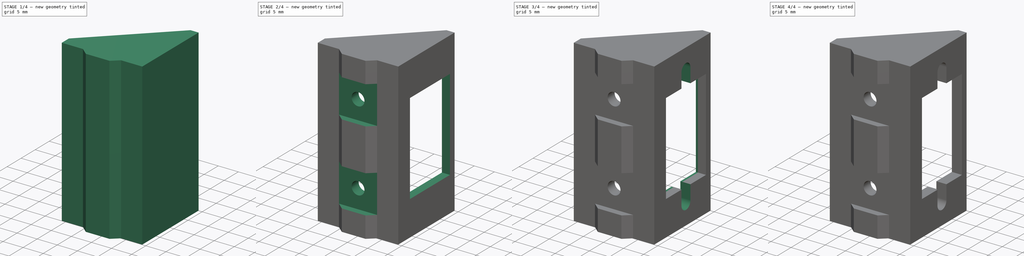
[diagram: build sequence overview — one tinted view per stage of 4, left to right]
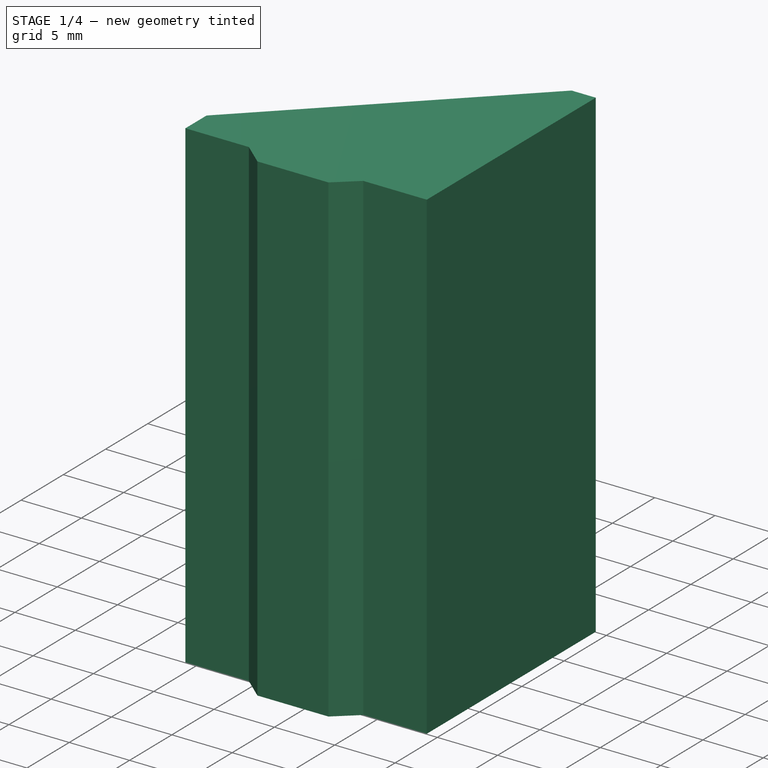
[diagram: stage 1 of 4 — iso view after this stage's code; geometry added in this stage tinted green]
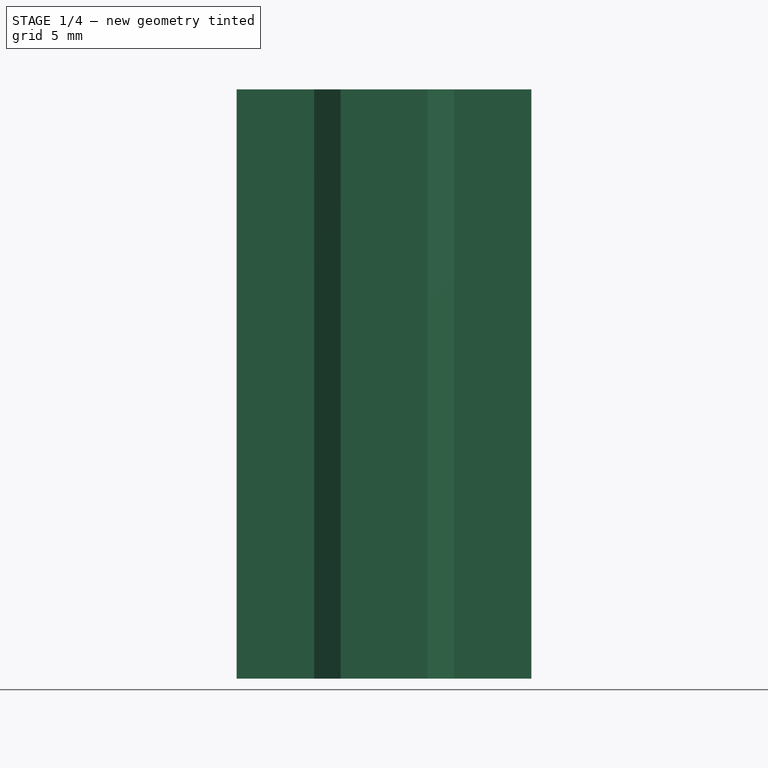
[diagram: stage 1 of 4 — front view after this stage's code; geometry added in this stage tinted green]
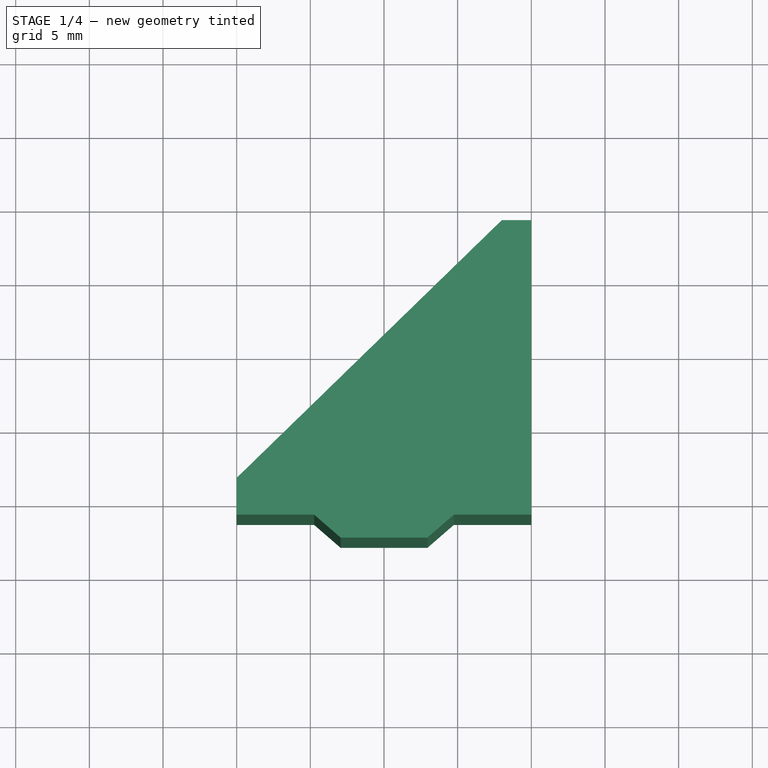
[diagram: stage 1 of 4 — top view after this stage's code; geometry added in this stage tinted green]
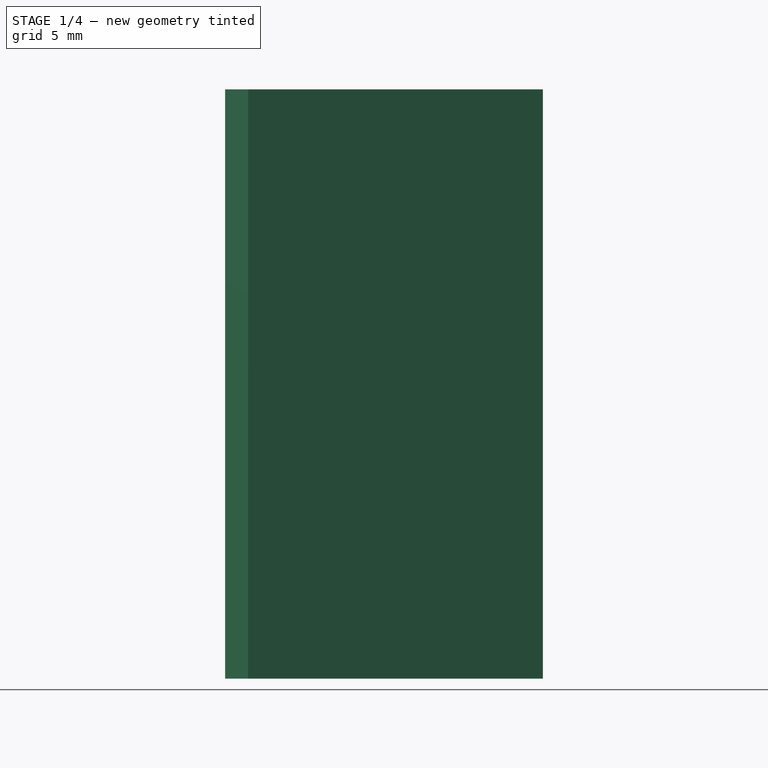
[diagram: stage 1 of 4 — right view after this stage's code; geometry added in this stage tinted green]
FCSTD DOCUMENT  (FreeCAD 0.21R33771 (Git))
Label: suporte-voltimetro-amperimetro-mine
License: All rights reserved
LicenseURL: https://en.wikipedia.org/wiki/All_rights_reserved
objects: Sketcher::SketchObject×9, PartDesign::Pocket×7, PartDesign::Pad×4, PartDesign::Body×2, PartDesign::Chamfer×1, Part::Refine×1, PartDesign::FeatureBase×1
note: 37 computed .brp shape members not serialized (recipe doc carries the construction recipe); baked Part::Feature solids carry a one-line shape summary decoded from their .brp

FEATURE [Sketcher::SketchObject] Sketch
  FullyConstrained = true
  MapMode = 5
  Support = -> [XY_Plane]
  sketch-geometry (11):
    g0: LineSegment StartX=-10 StartY=-8.75 StartZ=0 EndX=-10 EndY=-11.25 EndZ=0
    g1: LineSegment StartX=-10 StartY=-11.25 StartZ=0 EndX=10 EndY=-11.25 EndZ=0
    g2: LineSegment StartX=10 StartY=-11.25 StartZ=0 EndX=10 EndY=8.75 EndZ=0
    g3: LineSegment StartX=10 StartY=8.75 StartZ=0 EndX=8 EndY=8.75 EndZ=0
    g4: LineSegment StartX=8 StartY=8.75 StartZ=0 EndX=8 EndY=-8.75 EndZ=0
    g5: LineSegment StartX=8 StartY=-8.75 StartZ=0 EndX=-10 EndY=-8.75 EndZ=0
    g6: LineSegment StartX=-10 StartY=-11.25 StartZ=0 EndX=-4.74 EndY=-11.25 EndZ=0
    g7: LineSegment StartX=-4.74 StartY=-11.25 StartZ=0 EndX=-2.94 EndY=-12.81 EndZ=0
    g8: LineSegment StartX=-2.94 StartY=-12.81 StartZ=0 EndX=2.94 EndY=-12.81 EndZ=0
    g9: LineSegment StartX=2.94 StartY=-12.81 StartZ=0 EndX=4.74 EndY=-11.25 EndZ=0
    g10: LineSegment StartX=4.74 StartY=-11.25 StartZ=0 EndX=10 EndY=-11.25 EndZ=0
  constraints (29):
    c: Vertical(g0)
    c: Coincident(g0,g1)
    c: Coincident(g1,g2)
    c: Coincident(g2,g3)
    c: Horizontal(g3)
    c: Coincident(g3,g4)
    c: Coincident(g4,g5)
    c: Coincident(g5,g0)
    c: Horizontal(g5)
    c: Symmetric(g0,g2,g-2)
    c: Symmetric(g4,g3,g-1)
    c: Vertical(g2)
    c: DistanceX(g3,g3) = 2
    c: DistanceX(g1,g1) = 20
    c: Coincident(g0,g6)
    c: Coincident(g6,g7)
    c: Coincident(g7,g8)
    c: Coincident(g8,g9)
    c: Coincident(g9,g10)
    c: Coincident(g10,g2)
    c: Horizontal(g10)
    c: Horizontal(g6)
    c: Equal(g7,g9)
    c: Symmetric(g8,g7,g-2)
    c: DistanceX(g6,g9) = 9.48
    c: DistanceX(g8,g8) = 5.88
    c: DistanceY(g7,g6) = 1.56
    c: DistanceY(g0,g0) = 2.5
    c: DistanceY(g2,g2) = 20
FEATURE [PartDesign::Pad] Pad
  Direction = (0,0,1)
  Length = 40
  Length2 = 10
  Profile = -> Sketch
  ReferenceAxis = -> Sketch [N_Axis]
  Type = 0
FEATURE [Sketcher::SketchObject] Sketch001
  ExternalGeometry = -> [Pad]
  FullyConstrained = true
  MapMode = 5
  Placement = pos=(0,0,0) rot=(1,0,0;3.14159rad)
  Support = -> [Pad]
  sketch-geometry (3):
    g0: LineSegment StartX=-10 StartY=8.75 StartZ=0 EndX=8 EndY=-8.75 EndZ=0
    g1: LineSegment StartX=8 StartY=-8.75 StartZ=0 EndX=8 EndY=8.75 EndZ=0
    g2: LineSegment StartX=8 StartY=8.75 StartZ=0 EndX=-10 EndY=8.75 EndZ=0
  constraints (6):
    c: Coincident(g0,g1)
    c: Coincident(g1,g2)
    c: Coincident(g2,g0)
    c: Coincident(g0,g-3)
    c: Coincident(g1,g-4)
    c: Coincident(g0,g-4)
FEATURE [PartDesign::Pad] Pad001
  BaseFeature = -> Pad
  Direction = (0,0,-1)
  Length = 10
  Length2 = 10
  Profile = -> Sketch001
  ReferenceAxis = -> Sketch001 [N_Axis]
  Type = 3
  UpToFace = -> Pad [Face12]
FEATURE [Sketcher::SketchObject] Sketch002
  ExternalGeometry = -> [Pad001]
  FullyConstrained = true
  MapMode = 5
  Placement = pos=(-10,0,0) rot=(0.57735,-0.57735,-0.57735;2.0944rad)
  Support = -> [Pad001]
  sketch-geometry (5):
    g0: LineSegment StartX=-8.75 StartY=20 StartZ=0 EndX=8.75 EndY=20 EndZ=0
    g1: LineSegment StartX=-8.75 StartY=38 StartZ=0 EndX=8.75 EndY=38 EndZ=0
    g2: LineSegment StartX=8.75 StartY=38 StartZ=0 EndX=8.75 EndY=2 EndZ=0
    g3: LineSegment StartX=8.75 StartY=2 StartZ=0 EndX=-8.75 EndY=2 EndZ=0
    g4: LineSegment StartX=-8.75 StartY=2 StartZ=0 EndX=-8.75 EndY=38 EndZ=0
  constraints (14):
    c: PointOnObject(g0,g-3)
    c: PointOnObject(g0,g-4)
    c: Coincident(g1,g2)
    c: Coincident(g2,g3)
    c: Coincident(g3,g4)
    c: Coincident(g4,g1)
    c: Horizontal(g1)
    c: Horizontal(g3)
    c: Vertical(g2)
    c: PointOnObject(g0,g2)
    c: Symmetric(g3,g1,g0)
    c: PointOnObject(g0,g4)
    c: DistanceY(g1,g-3) = 2
    c: Symmetric(g-4,g-4,g0)
FEATURE [PartDesign::Pocket] Pocket
  BaseFeature = -> Pad001
  Direction = (1,0,0)
  Length = 18
  Length2 = 5
  Profile = -> Sketch002
  ReferenceAxis = -> Sketch002 [N_Axis]
  Type = 0
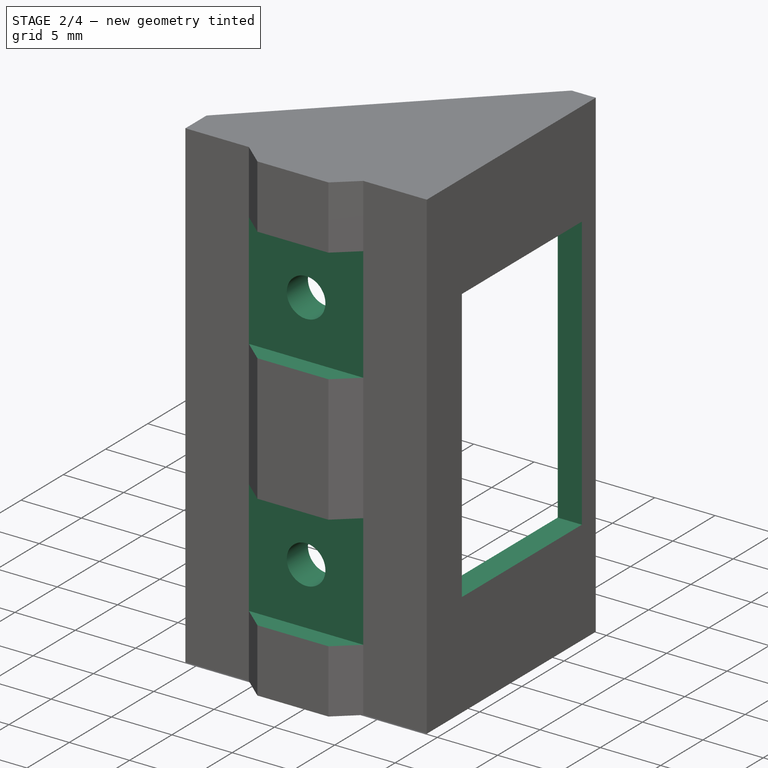
[diagram: stage 2 of 4 — iso view after this stage's code; geometry added in this stage tinted green]
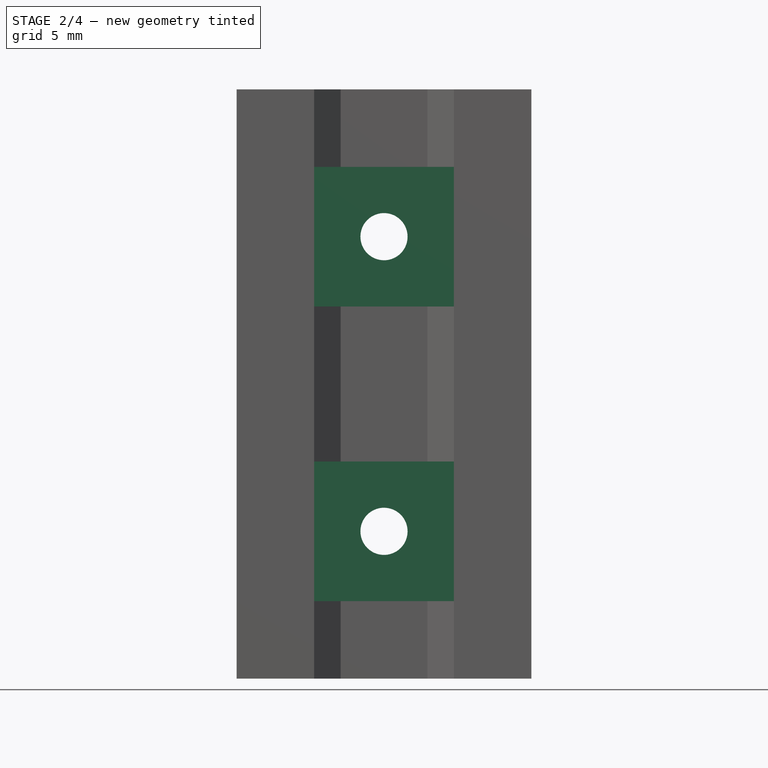
[diagram: stage 2 of 4 — front view after this stage's code; geometry added in this stage tinted green]
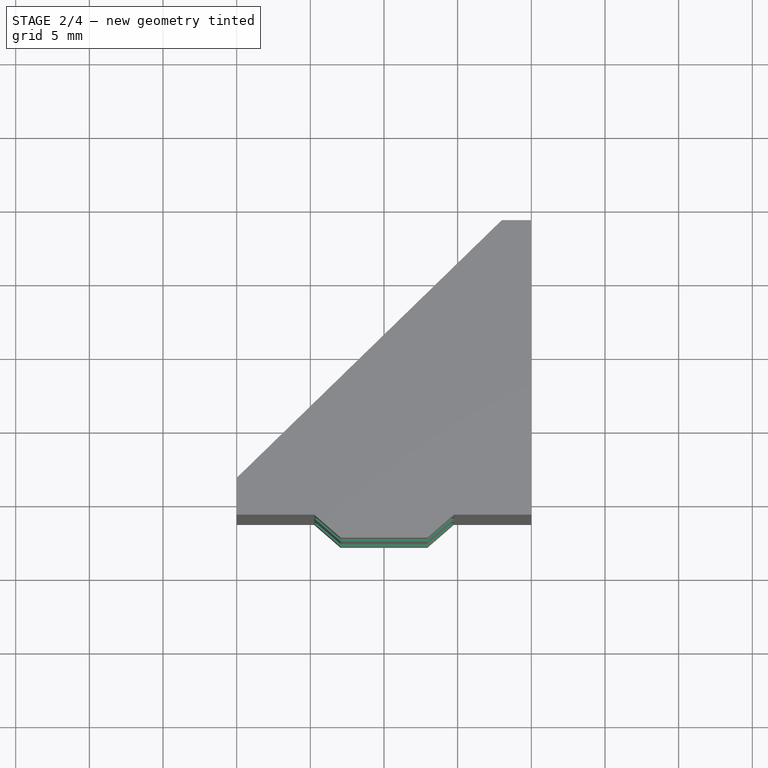
[diagram: stage 2 of 4 — top view after this stage's code; geometry added in this stage tinted green]
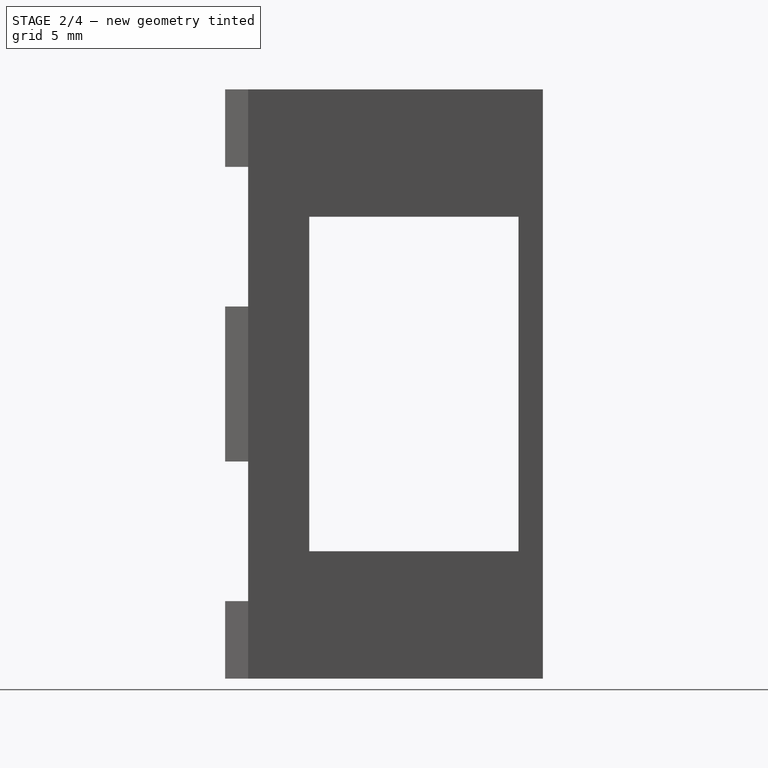
[diagram: stage 2 of 4 — right view after this stage's code; geometry added in this stage tinted green]
FEATURE [Sketcher::SketchObject] Sketch003
  ExternalGeometry = -> [Pocket]
  FullyConstrained = true
  MapMode = 5
  Placement = pos=(8,0,0) rot=(0.57735,-0.57735,-0.57735;2.0944rad)
  Support = -> [Pocket]
  sketch-geometry (5):
    g0: LineSegment StartX=-7.1 StartY=31.35 StartZ=0 EndX=7.1 EndY=31.35 EndZ=0
    g1: LineSegment StartX=7.1 StartY=31.35 StartZ=0 EndX=7.1 EndY=8.65 EndZ=0
    g2: LineSegment StartX=7.1 StartY=8.65 StartZ=0 EndX=-7.1 EndY=8.65 EndZ=0
    g3: LineSegment StartX=-7.1 StartY=8.65 StartZ=0 EndX=-7.1 EndY=31.35 EndZ=0
    g4: LineSegment StartX=-8.75 StartY=20 StartZ=0 EndX=8.75 EndY=20 EndZ=0
  constraints (13):
    c: Coincident(g0,g1)
    c: Coincident(g1,g2)
    c: Coincident(g2,g3)
    c: Coincident(g3,g0)
    c: Horizontal(g2)
    c: Vertical(g1)
    c: Symmetric(g0,g2,g4)
    c: Symmetric(g-3,g-3,g4)
    c: PointOnObject(g4,g-3)
    c: PointOnObject(g4,g-4)
    c: DistanceY(g1,g1) = 22.7
    c: DistanceX(g0,g0) = 14.2
    c: Symmetric(g0,g0,g-2)
FEATURE [PartDesign::Pocket] Pocket001
  BaseFeature = -> Pocket
  Direction = (1,0,0)
  Length = 5
  Length2 = 5
  Profile = -> Sketch003
  ReferenceAxis = -> Sketch003 [N_Axis]
  Type = 1
FEATURE [Sketcher::SketchObject] Sketch004
  ExternalGeometry = -> [Pocket001]
  FullyConstrained = true
  MapMode = 5
  Placement = pos=(0,-12.81,0) rot=(1,0,0;1.5708rad)
  Support = -> [Pocket001]
  sketch-geometry (5):
    g0: LineSegment StartX=-10 StartY=20 StartZ=0 EndX=10 EndY=20 EndZ=0
    g1: LineSegment StartX=0 StartY=30 StartZ=0 EndX=0 EndY=10 EndZ=0
    g2: Circle CenterX=0 CenterY=30 CenterZ=0 NormalX=0 NormalY=0 NormalZ=1 AngleXU=0 Radius=1.6
    g3: Circle CenterX=0 CenterY=10 CenterZ=0 NormalX=0 NormalY=0 NormalZ=1 AngleXU=0 Radius=1.6
    g4: LineSegment StartX=-10 StartY=30 StartZ=0 EndX=10 EndY=30 EndZ=0
  constraints (13):
    c: Symmetric(g-4,g-4,g0)
    c: PointOnObject(g0,g-4)
    c: PointOnObject(g0,g-3)
    c: Symmetric(g1,g1,g0)
    c: Symmetric(g0,g0,g1)
    c: Coincident(g2,g1)
    c: Coincident(g3,g1)
    c: Equal(g3,g2)
    c: Diameter(g2) = 3.2
    c: PointOnObject(g4,g-3)
    c: PointOnObject(g4,g-4)
    c: PointOnObject(g2,g4)
    c: Symmetric(g0,g-3,g4)
FEATURE [PartDesign::Pocket] Pocket002
  BaseFeature = -> Pocket001
  Direction = (0,1,-2e-16)
  Length = 5
  Length2 = 5
  Profile = -> Sketch004
  ReferenceAxis = -> Sketch004 [N_Axis]
  Type = 1
FEATURE [Sketcher::SketchObject] Sketch005
  ExternalGeometry = -> [Pocket002]
  FullyConstrained = true
  MapMode = 5
  Placement = pos=(0,-12.81,0) rot=(1,0,0;1.5708rad)
  Support = -> [Pocket002]
  sketch-geometry (10):
    g0: LineSegment StartX=-4.74 StartY=34.74 StartZ=0 EndX=4.74 EndY=34.74 EndZ=0
    g1: LineSegment StartX=4.74 StartY=34.74 StartZ=0 EndX=4.74 EndY=25.26 EndZ=0
    g2: LineSegment StartX=4.74 StartY=25.26 StartZ=0 EndX=-4.74 EndY=25.26 EndZ=0
    g3: LineSegment StartX=-4.74 StartY=25.26 StartZ=0 EndX=-4.74 EndY=34.74 EndZ=0
    g4: LineSegment StartX=-4.74 StartY=14.74 StartZ=0 EndX=4.74 EndY=14.74 EndZ=0
    g5: LineSegment StartX=4.74 StartY=14.74 StartZ=0 EndX=4.74 EndY=5.26 EndZ=0
    g6: LineSegment StartX=4.74 StartY=5.26 StartZ=0 EndX=-4.74 EndY=5.26 EndZ=0
    g7: LineSegment StartX=-4.74 StartY=5.26 StartZ=0 EndX=-4.74 EndY=14.74 EndZ=0
    g8: Circle CenterX=0 CenterY=10 CenterZ=0 NormalX=0 NormalY=0 NormalZ=1 AngleXU=0 Radius=4.74
    g9: Circle CenterX=0 CenterY=30 CenterZ=0 NormalX=0 NormalY=0 NormalZ=1 AngleXU=0 Radius=4.74
  constraints (28):
    c: Coincident(g0,g1)
    c: Coincident(g1,g2)
    c: Coincident(g2,g3)
    c: Coincident(g3,g0)
    c: Horizontal(g0)
    c: Horizontal(g2)
    c: Vertical(g1)
    c: Vertical(g3)
    c: Coincident(g4,g5)
    c: Coincident(g5,g6)
    c: Coincident(g6,g7)
    c: Coincident(g7,g4)
    c: Horizontal(g4)
    c: Horizontal(g6)
    c: Vertical(g5)
    c: Vertical(g7)
    c: Coincident(g8,g-6)
    c: Coincident(g9,g-5)
    c: Tangent(g9,g0)
    c: Tangent(g2,g9)
    c: Tangent(g8,g4)
    c: Tangent(g8,g6)
    c: PointOnObject(g4,g-3)
    c: PointOnObject(g4,g-4)
    c: PointOnObject(g1,g-4)
    c: PointOnObject(g2,g-3)
    c: Equal(g9,g8)
    c: Tangent(g9,g-4)
FEATURE [PartDesign::Pocket] Pocket003
  BaseFeature = -> Pocket002
  Direction = (0,1,-2e-16)
  Length = 0
  Length2 = 5
  Profile = -> Sketch005
  ReferenceAxis = -> Sketch005 [N_Axis]
  Type = 3
  UpToFace = -> Pocket002 [Face19]
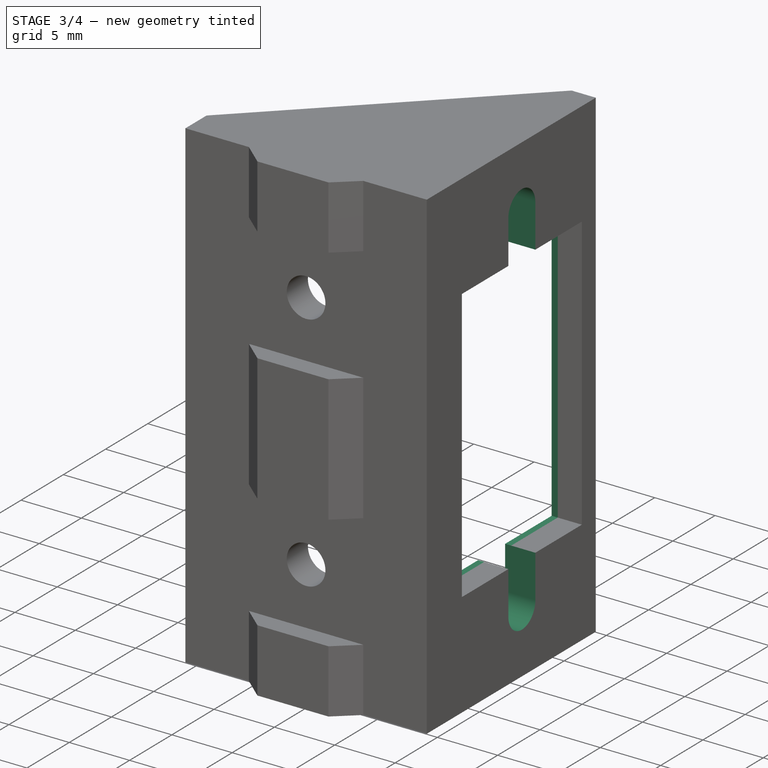
[diagram: stage 3 of 4 — iso view after this stage's code; geometry added in this stage tinted green]
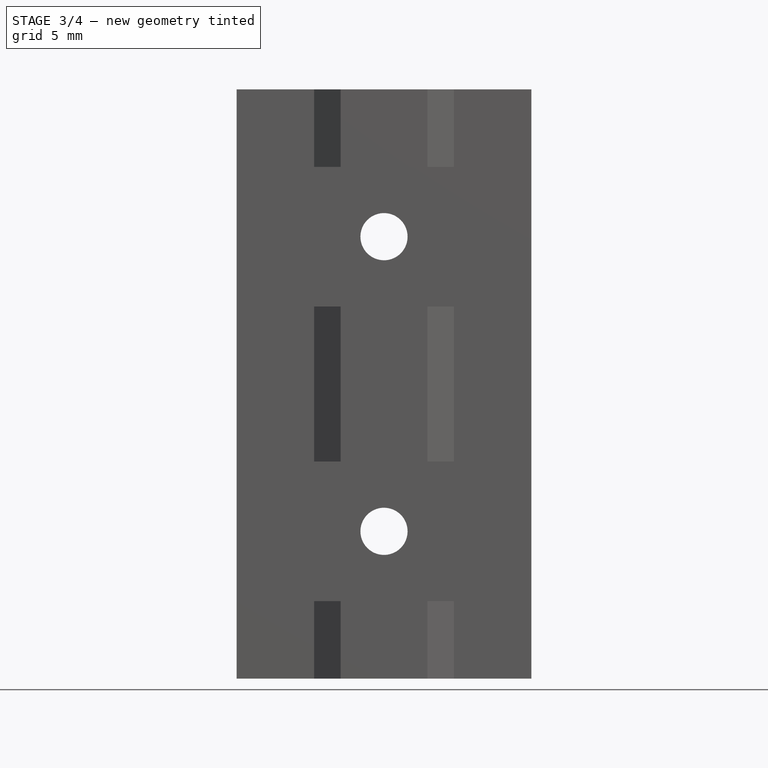
[diagram: stage 3 of 4 — front view after this stage's code; geometry added in this stage tinted green]
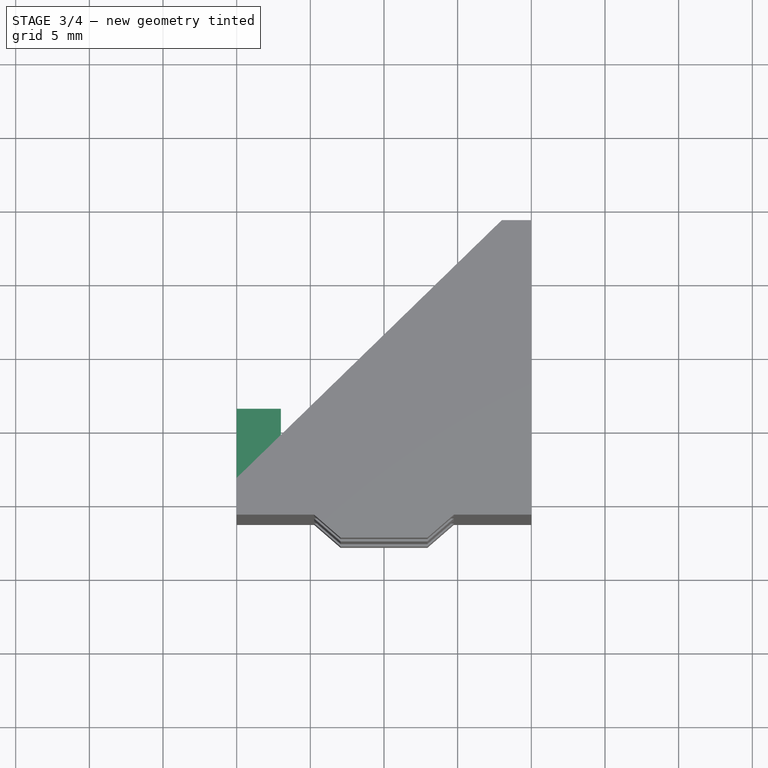
[diagram: stage 3 of 4 — top view after this stage's code; geometry added in this stage tinted green]
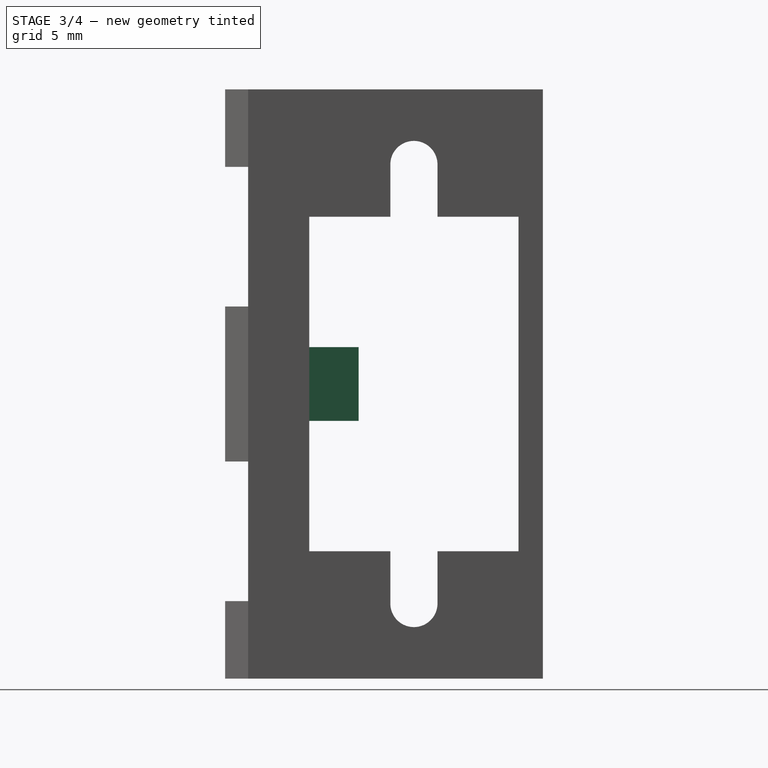
[diagram: stage 3 of 4 — right view after this stage's code; geometry added in this stage tinted green]
FEATURE [PartDesign::Pad] Pad002
  BaseFeature = -> Pocket003
  Direction = (-1,0,0)
  Length = 0.5
  Length2 = 10
  Profile = -> Pocket003 [Face12]
  Type = 0
FEATURE [PartDesign::Pocket] Pocket004
  BaseFeature = -> Pad002
  Direction = (0,0,1)
  Length = 5
  Length2 = 5
  Profile = -> Pad002 [Face11]
  Type = 1
FEATURE [Sketcher::SketchObject] Sketch006
  ExternalGeometry = -> [Pocket004]
  FullyConstrained = true
  MapMode = 5
  Placement = pos=(10,0,0) rot=(0.57735,0.57735,0.57735;2.0944rad)
  Support = -> [Pocket004]
  sketch-geometry (10):
    g0: ArcOfCircle CenterX=0 CenterY=34.9 CenterZ=0 NormalX=0 NormalY=0 NormalZ=1 AngleXU=0 Radius=1.6 StartAngle=8e-16 EndAngle=3.14159
    g1: ArcOfCircle CenterX=0 CenterY=5.1 CenterZ=0 NormalX=0 NormalY=0 NormalZ=1 AngleXU=0 Radius=1.6 StartAngle=3.14159 EndAngle=6.28319
    g2: LineSegment StartX=-1.6 StartY=34.9 StartZ=0 EndX=-1.6 EndY=5.1 EndZ=0
    g3: LineSegment StartX=1.6 StartY=5.1 StartZ=0 EndX=1.6 EndY=34.9 EndZ=0
    g4: LineSegment StartX=-7.1 StartY=20 StartZ=0 EndX=7.1 EndY=20 EndZ=0
    g5: Circle CenterX=0 CenterY=34.9 CenterZ=0 NormalX=0 NormalY=0 NormalZ=1 AngleXU=0 Radius=1.6
    g6: LineSegment StartX=-1.6 StartY=36.5 StartZ=0 EndX=1.6 EndY=36.5 EndZ=0
    g7: LineSegment StartX=1.6 StartY=36.5 StartZ=0 EndX=1.6 EndY=3.5 EndZ=0
    g8: LineSegment StartX=1.6 StartY=3.5 StartZ=0 EndX=-1.6 EndY=3.5 EndZ=0
    g9: LineSegment StartX=-1.6 StartY=3.5 StartZ=0 EndX=-1.6 EndY=36.5 EndZ=0
  constraints (26):
    c: Tangent(g0,g2) = -1.5708
    c: Tangent(g2,g1) = -1.5708
    c: Tangent(g1,g3) = -1.5708
    c: Tangent(g3,g0) = -1.5708
    c: Equal(g0,g1)
    c: Symmetric(g-3,g-3,g4)
    c: PointOnObject(g4,g-3)
    c: PointOnObject(g4,g-4)
    c: Symmetric(g0,g1,g4)
    c: PointOnObject(g0,g-2)
    c: Coincident(g5,g0)
    c: Diameter(g5) = 3.2
    c: Equal(g5,g0)
    c: Coincident(g6,g7)
    c: Coincident(g7,g8)
    c: Coincident(g8,g9)
    c: Coincident(g9,g6)
    c: Horizontal(g6)
    c: Horizontal(g8)
    c: Vertical(g7)
    c: Vertical(g9)
    c: Tangent(g8,g1)
    c: Tangent(g0,g6)
    c: Tangent(g9,g5)
    c: Tangent(g7,g1)
    c: DistanceY(g7,g7) = 33
FEATURE [PartDesign::Pocket] Pocket005
  BaseFeature = -> Pocket004
  Direction = (-1,0,0)
  Length = 0
  Length2 = 5
  Profile = -> Sketch006
  ReferenceAxis = -> Sketch006 [N_Axis]
  Type = 3
  UpToFace = -> Pocket004 [Face12]
FEATURE [Sketcher::SketchObject] Sketch007
  ExternalGeometry = -> [Pocket005]
  FullyConstrained = true
  MapMode = 5
  Placement = pos=(0,-8.75,0) rot=(0,0.707107,0.707107;3.14159rad)
  Support = -> [Pocket005]
  sketch-geometry (5):
    g0: LineSegment StartX=10 StartY=20 StartZ=0 EndX=0 EndY=20 EndZ=0
    g1: LineSegment StartX=7 StartY=22.5 StartZ=0 EndX=10 EndY=22.5 EndZ=0
    g2: LineSegment StartX=10 StartY=22.5 StartZ=0 EndX=10 EndY=17.5 EndZ=0
    g3: LineSegment StartX=10 StartY=17.5 StartZ=0 EndX=7 EndY=17.5 EndZ=0
    g4: LineSegment StartX=7 StartY=17.5 StartZ=0 EndX=7 EndY=22.5 EndZ=0
  constraints (14):
    c: PointOnObject(g0,g-3)
    c: PointOnObject(g0,g-2)
    c: Symmetric(g-3,g-3,g0)
    c: Coincident(g1,g2)
    c: Coincident(g2,g3)
    c: Coincident(g3,g4)
    c: Coincident(g4,g1)
    c: Horizontal(g1)
    c: Horizontal(g3)
    c: Vertical(g4)
    c: Symmetric(g2,g1,g0)
    c: PointOnObject(g1,g-3)
    c: DistanceX(g1,g1) = 3
    c: DistanceY(g4,g4) = 5
FEATURE [PartDesign::Pad] Pad003
  BaseFeature = -> Pocket005
  Direction = (0,1,-2e-16)
  Length = 5
  Length2 = 10
  Profile = -> Sketch007
  ReferenceAxis = -> Sketch007 [N_Axis]
  Type = 0
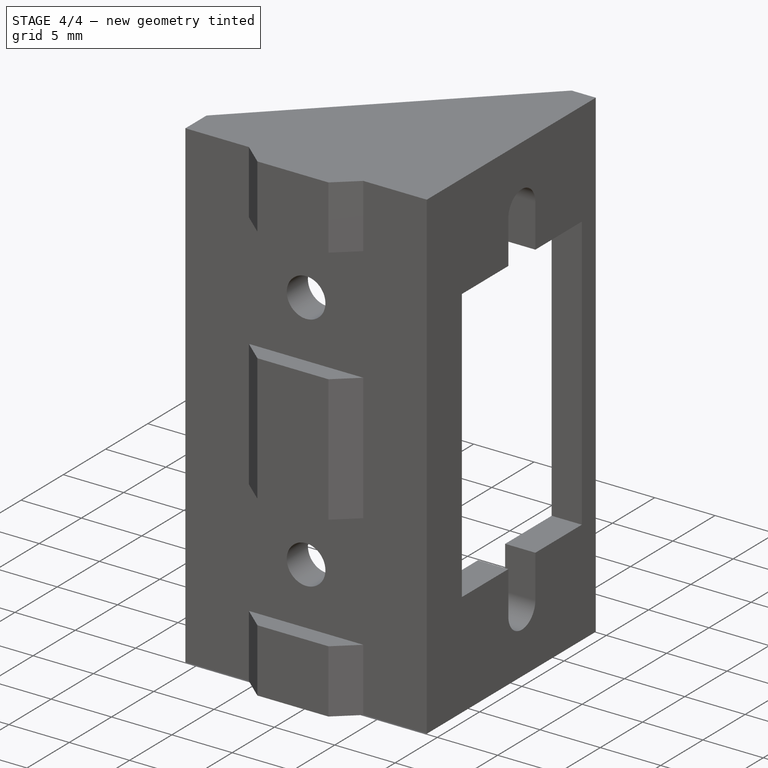
[diagram: stage 4 of 4 — iso view after this stage's code; geometry added in this stage tinted green]
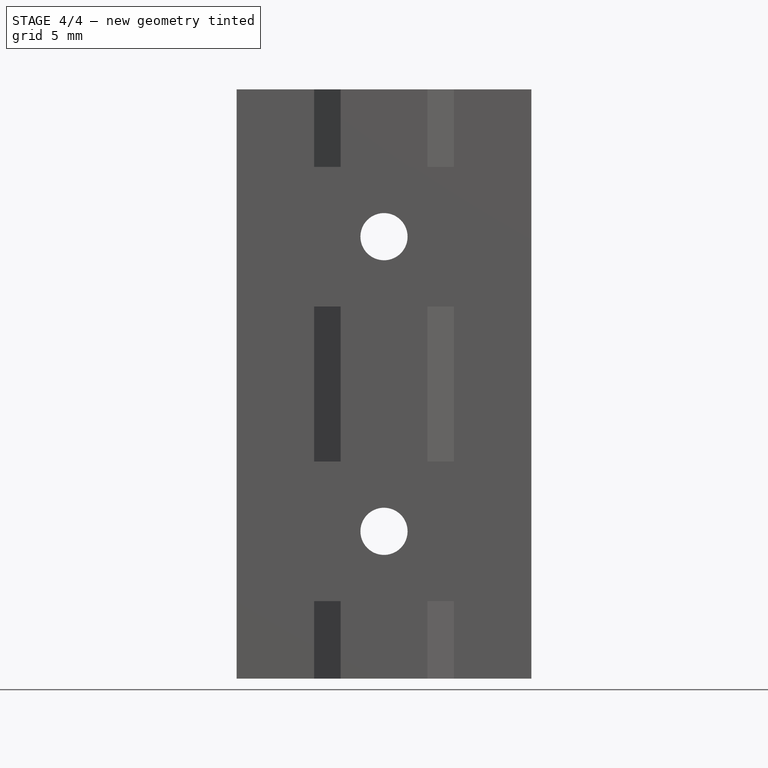
[diagram: stage 4 of 4 — front view after this stage's code; geometry added in this stage tinted green]
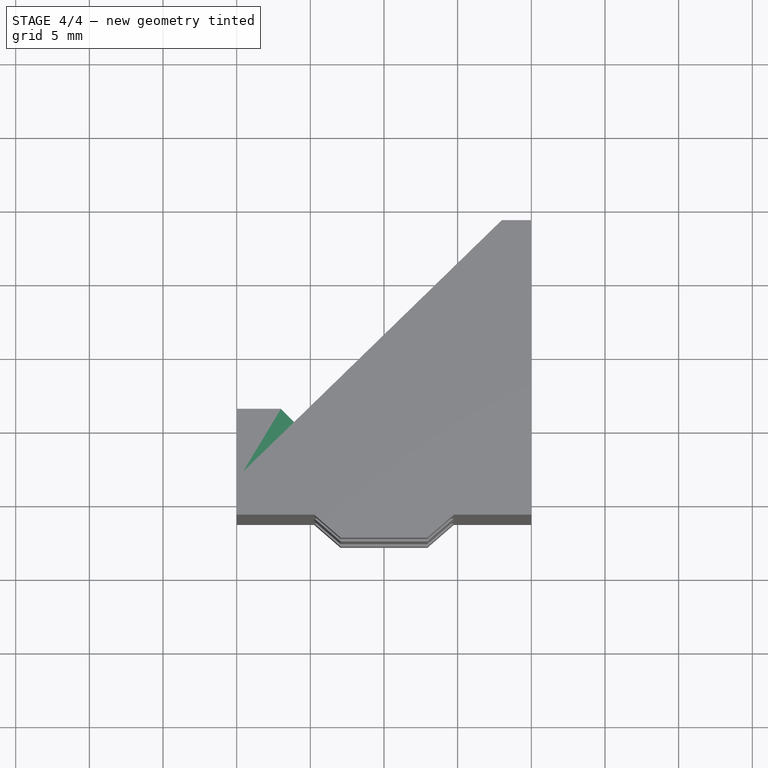
[diagram: stage 4 of 4 — top view after this stage's code; geometry added in this stage tinted green]
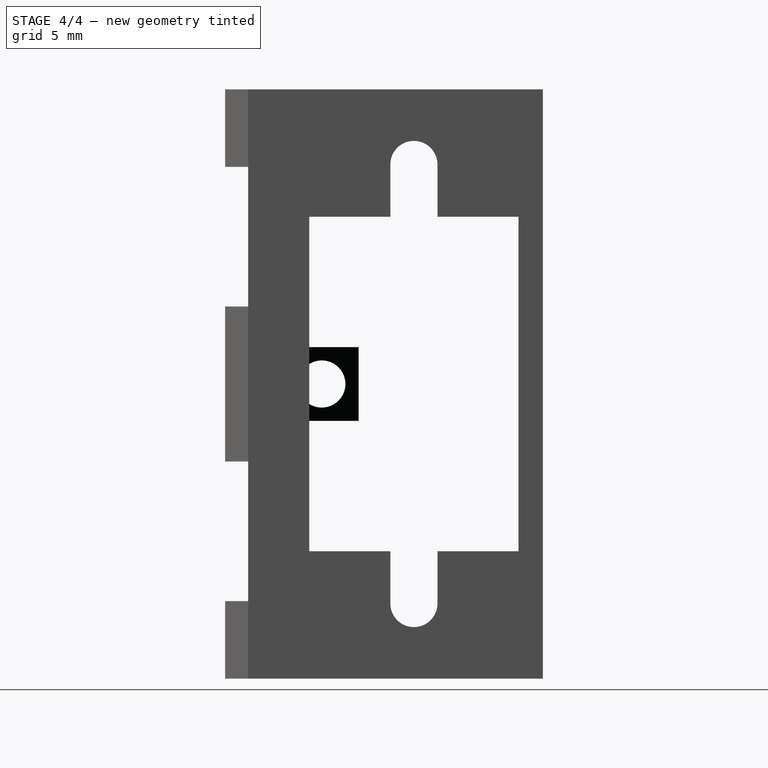
[diagram: stage 4 of 4 — right view after this stage's code; geometry added in this stage tinted green]
FEATURE [PartDesign::Chamfer] Chamfer
  Angle = 45
  Base = -> Pad003 [Edge14]
  BaseFeature = -> Pad003
  ChamferType = 0
  FlipDirection = false
  Size = 4.99
  Size2 = 1
  SupportTransform = false
  UseAllEdges = false
FEATURE [Sketcher::SketchObject] Sketch008
  ExternalGeometry = -> [Chamfer]
  FullyConstrained = true
  MapMode = 5
  Placement = pos=(-10,0,0) rot=(0.57735,-0.57735,-0.57735;2.0944rad)
  Support = -> [Chamfer]
  sketch-geometry (2):
    g0: Circle CenterX=6.25 CenterY=20 CenterZ=0 NormalX=0 NormalY=0 NormalZ=1 AngleXU=0 Radius=2.5
    g1: Circle CenterX=6.25 CenterY=20 CenterZ=0 NormalX=0 NormalY=0 NormalZ=1 AngleXU=0 Radius=1.6
  constraints (5):
    c: Tangent(g0,g-5)
    c: Coincident(g1,g0)
    c: Tangent(g0,g-4)
    c: Tangent(g0,g-3)
    c: Diameter(g1) = 3.2
FEATURE [PartDesign::Pocket] Pocket006
  BaseFeature = -> Chamfer
  Direction = (1,0,0)
  Length = 0
  Length2 = 5
  Profile = -> Sketch008
  ReferenceAxis = -> Sketch008 [N_Axis]
  Type = 3
  UpToFace = -> Chamfer [Face7]
FEATURE [PartDesign::Body] Body
  Group = -> [Sketch,Pad,Sketch001,Pad001,Sketch002,Pocket,Sketch003,Pocket001,Sketch004,Pocket002,Sketch005,Pocket003,Pad002,Pocket004,Sketch006,Pocket005,Sketch007,Pad003,Chamfer,Sketch008,Pocket006]
  Origin = -> Origin
  Tip = -> Pocket006
FEATURE [Part::Refine] Body001
  Source = -> Body
FEATURE [PartDesign::FeatureBase] BaseFeature
  BaseFeature = -> Body001
FEATURE [PartDesign::Body] Body002
  BaseFeature = -> Body001
  Group = -> [BaseFeature]
  Origin = -> Origin001
  Tip = -> BaseFeature
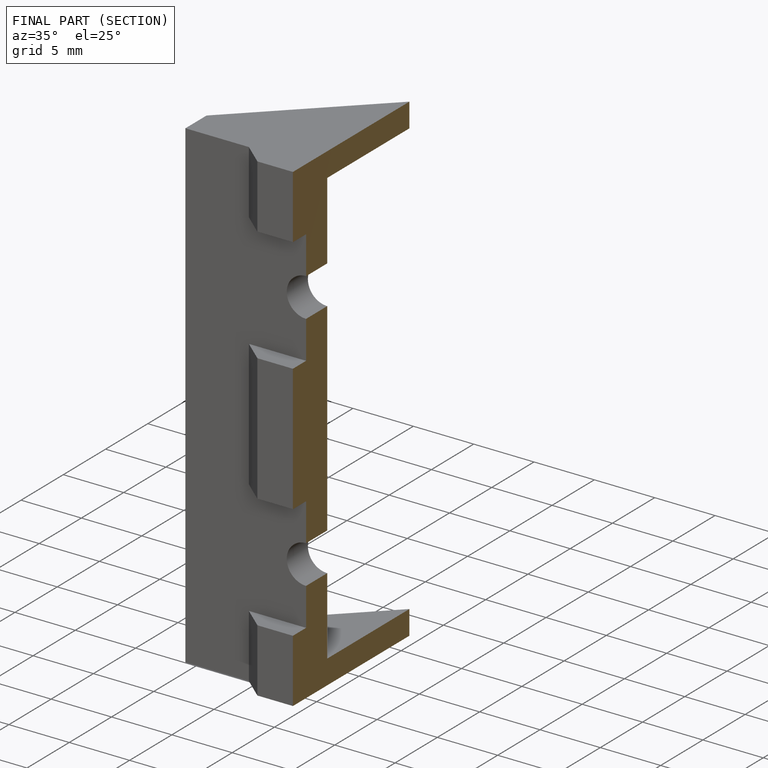
[diagram: finished part — half-section view (interior)]
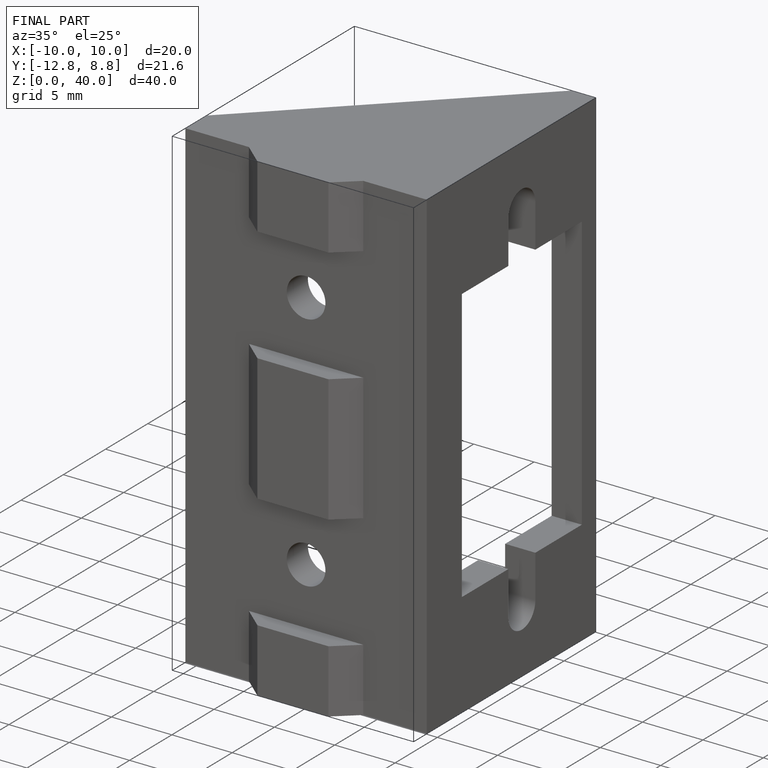
[diagram: finished part — iso view with bounding-box wireframe]
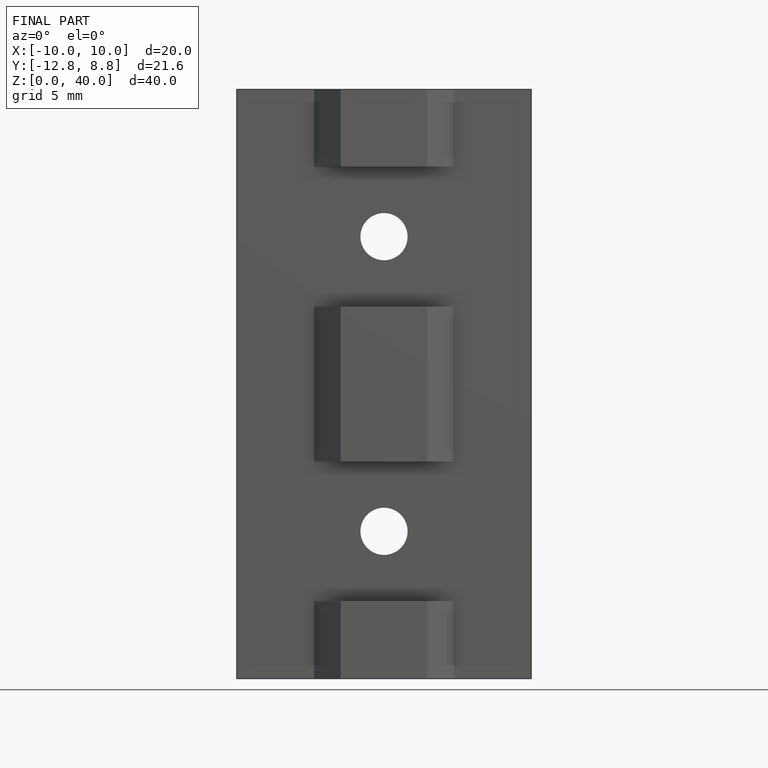
[diagram: finished part — front view with bounding-box wireframe]
